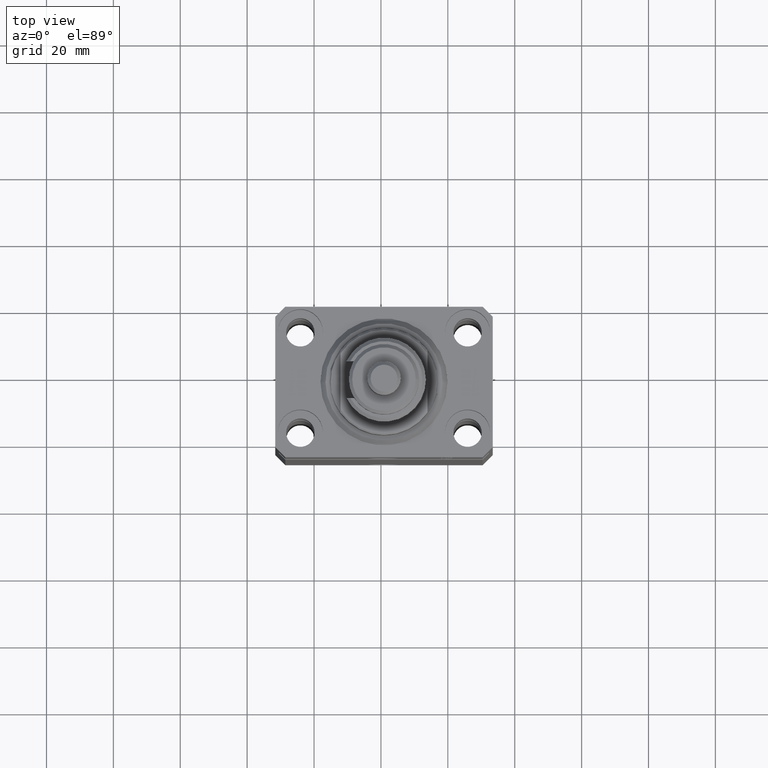
[diagram: clean part render]
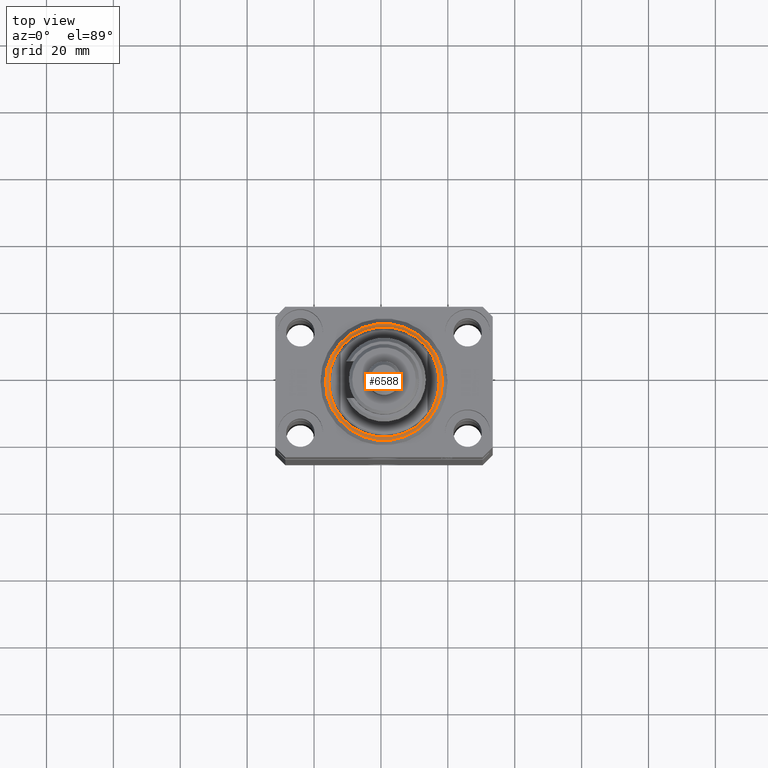
[diagram: same view with one face highlighted and labeled with its STEP entity id]
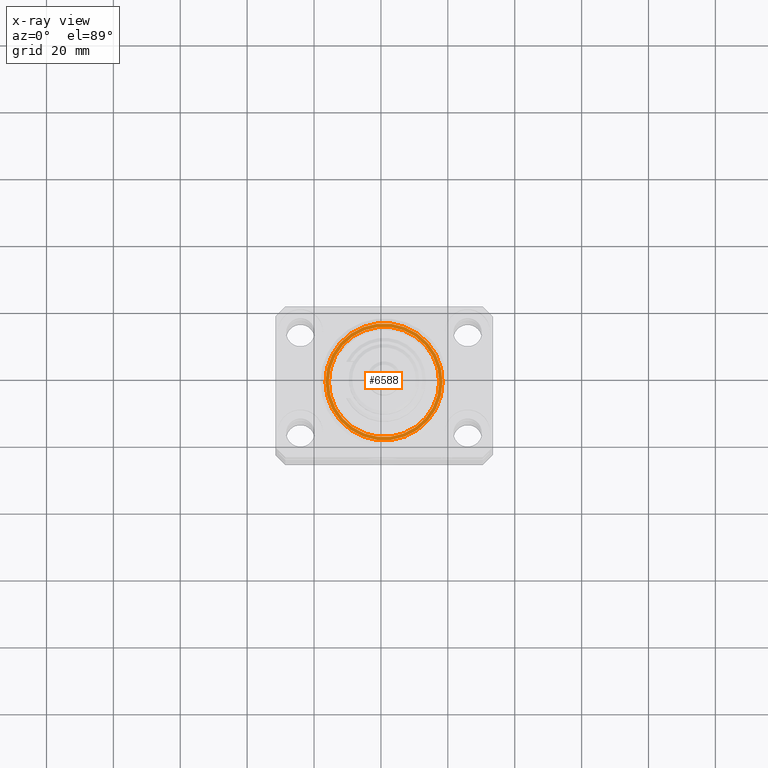
[diagram: x-ray of the same camera — body ghosted, the highlighted face saturated]
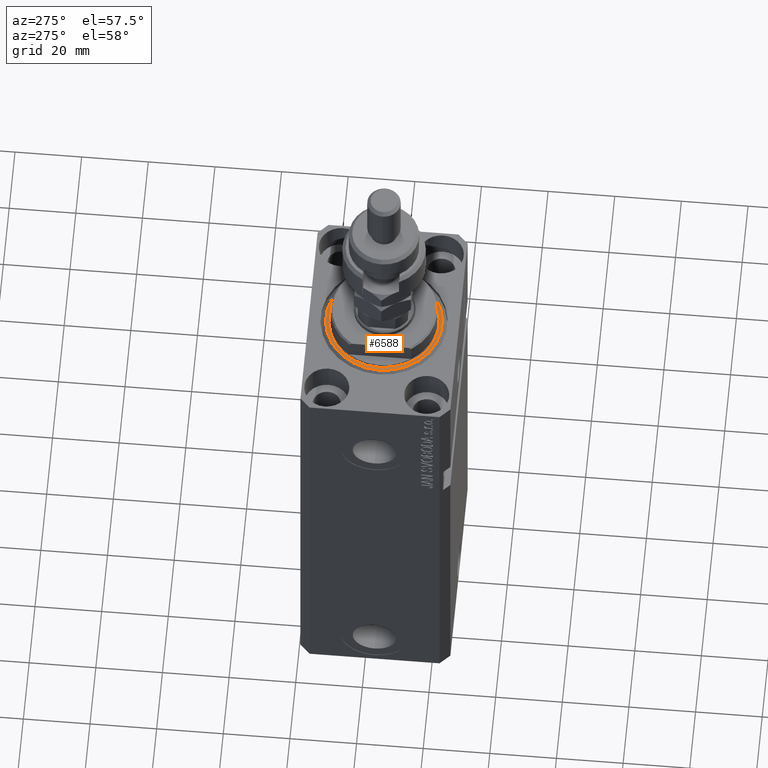
[diagram: same view with one face highlighted and labeled with its STEP entity id]
A machine part, top view. The second image highlights one B-rep face of the part: STEP entity #6588.
The next image is the same camera in x-ray: the body ghosted, the highlighted face saturated — about 0% of this face is hidden behind the body in this view.
A second angle (auxiliary view) of the same face is appended — the face is thin or edge-on in the first view.
In plain terms, the highlighted planar face has unit normal (0, 0, -1).
Its self-contained STEP definition (entity closure, byte-faithful):
#4154 = DIRECTION ( 'NONE',  ( 1.000000000000000000, 0.000000000000000000, 0.000000000000000000 ) ) ;
#6588 = ADVANCED_FACE ( 'NONE', ( #23984, #11933 ), #38468, .F. ) ;
#6880 = CARTESIAN_POINT ( 'NONE',  ( 0.000000000000000000, 0.000000000000000000, 0.000000000000000000 ) ) ;
#9157 = CIRCLE ( 'NONE', #32281, 17.49999999999999645 ) ;
#9915 = EDGE_CURVE ( 'NONE', #27938, #47047, #16460, .T. ) ;
#10106 = DIRECTION ( 'NONE',  ( 0.000000000000000000, 0.000000000000000000, 1.000000000000000000 ) ) ;
#11933 = FACE_OUTER_BOUND ( 'NONE', #42416, .T. ) ;
#12411 = CARTESIAN_POINT ( 'NONE',  ( 0.000000000000000000, 0.000000000000000000, 0.000000000000000000 ) ) ;
#12509 = CARTESIAN_POINT ( 'NONE',  ( -17.49999999999999645, 2.234980408443919215E-15, 0.000000000000000000 ) ) ;
#12947 = DIRECTION ( 'NONE',  ( -0.000000000000000000, -0.000000000000000000, -1.000000000000000000 ) ) ;
#14810 = VERTEX_POINT ( 'NONE', #41517 ) ;
#16027 = DIRECTION ( 'NONE',  ( 1.000000000000000000, 0.000000000000000000, -0.000000000000000000 ) ) ;
#16212 = EDGE_LOOP ( 'NONE', ( #25567, #42835 ) ) ;
#16460 = CIRCLE ( 'NONE', #17993, 17.49999999999999645 ) ;
#17993 = AXIS2_PLACEMENT_3D ( 'NONE', #37226, #18872, #4154 ) ;
#18024 = CARTESIAN_POINT ( 'NONE',  ( 16.50000000000000000, 0.000000000000000000, 2.168404344971008868E-16 ) ) ;
#18872 = DIRECTION ( 'NONE',  ( -0.000000000000000000, -0.000000000000000000, -1.000000000000000000 ) ) ;
#21355 = DIRECTION ( 'NONE',  ( 1.000000000000000000, 0.000000000000000000, 0.000000000000000000 ) ) ;
#23984 = FACE_BOUND ( 'NONE', #16212, .T. ) ;
#24559 = AXIS2_PLACEMENT_3D ( 'NONE', #6880, #32227, #21355 ) ;
#25567 = ORIENTED_EDGE ( 'NONE', *, *, #45097, .T. ) ;
#25584 = CIRCLE ( 'NONE', #43344, 16.50000000000000000 ) ;
#25595 = ORIENTED_EDGE ( 'NONE', *, *, #32655, .T. ) ;
#26848 = CIRCLE ( 'NONE', #24559, 16.50000000000000000 ) ;
#27938 = VERTEX_POINT ( 'NONE', #45258 ) ;
#28619 = VERTEX_POINT ( 'NONE', #18024 ) ;
#30751 = DIRECTION ( 'NONE',  ( 0.000000000000000000, 0.000000000000000000, 1.000000000000000000 ) ) ;
#31772 = CARTESIAN_POINT ( 'NONE',  ( 0.000000000000000000, 0.000000000000000000, 0.000000000000000000 ) ) ;
#32227 = DIRECTION ( 'NONE',  ( 0.000000000000000000, 0.000000000000000000, 1.000000000000000000 ) ) ;
#32281 = AXIS2_PLACEMENT_3D ( 'NONE', #31772, #12947, #42891 ) ;
#32655 = EDGE_CURVE ( 'NONE', #47047, #27938, #9157, .T. ) ;
#33434 = EDGE_CURVE ( 'NONE', #14810, #28619, #26848, .T. ) ;
#36476 = ORIENTED_EDGE ( 'NONE', *, *, #9915, .T. ) ;
#37226 = CARTESIAN_POINT ( 'NONE',  ( 0.000000000000000000, 0.000000000000000000, 0.000000000000000000 ) ) ;
#38468 = PLANE ( 'NONE',  #38688 ) ;
#38688 = AXIS2_PLACEMENT_3D ( 'NONE', #12411, #30751, #16027 ) ;
#39548 = DIRECTION ( 'NONE',  ( 1.000000000000000000, 0.000000000000000000, 0.000000000000000000 ) ) ;
#41517 = CARTESIAN_POINT ( 'NONE',  ( -16.50000000000000000, 2.020667218593133100E-15, 2.168404344971008868E-16 ) ) ;
#42416 = EDGE_LOOP ( 'NONE', ( #36476, #25595 ) ) ;
#42835 = ORIENTED_EDGE ( 'NONE', *, *, #33434, .T. ) ;
#42891 = DIRECTION ( 'NONE',  ( 1.000000000000000000, 0.000000000000000000, 0.000000000000000000 ) ) ;
#43344 = AXIS2_PLACEMENT_3D ( 'NONE', #47032, #10106, #39548 ) ;
#45097 = EDGE_CURVE ( 'NONE', #28619, #14810, #25584, .T. ) ;
#45258 = CARTESIAN_POINT ( 'NONE',  ( 17.49999999999999645, 0.000000000000000000, 0.000000000000000000 ) ) ;
#47032 = CARTESIAN_POINT ( 'NONE',  ( 0.000000000000000000, 0.000000000000000000, 0.000000000000000000 ) ) ;
#47047 = VERTEX_POINT ( 'NONE', #12509 ) ;